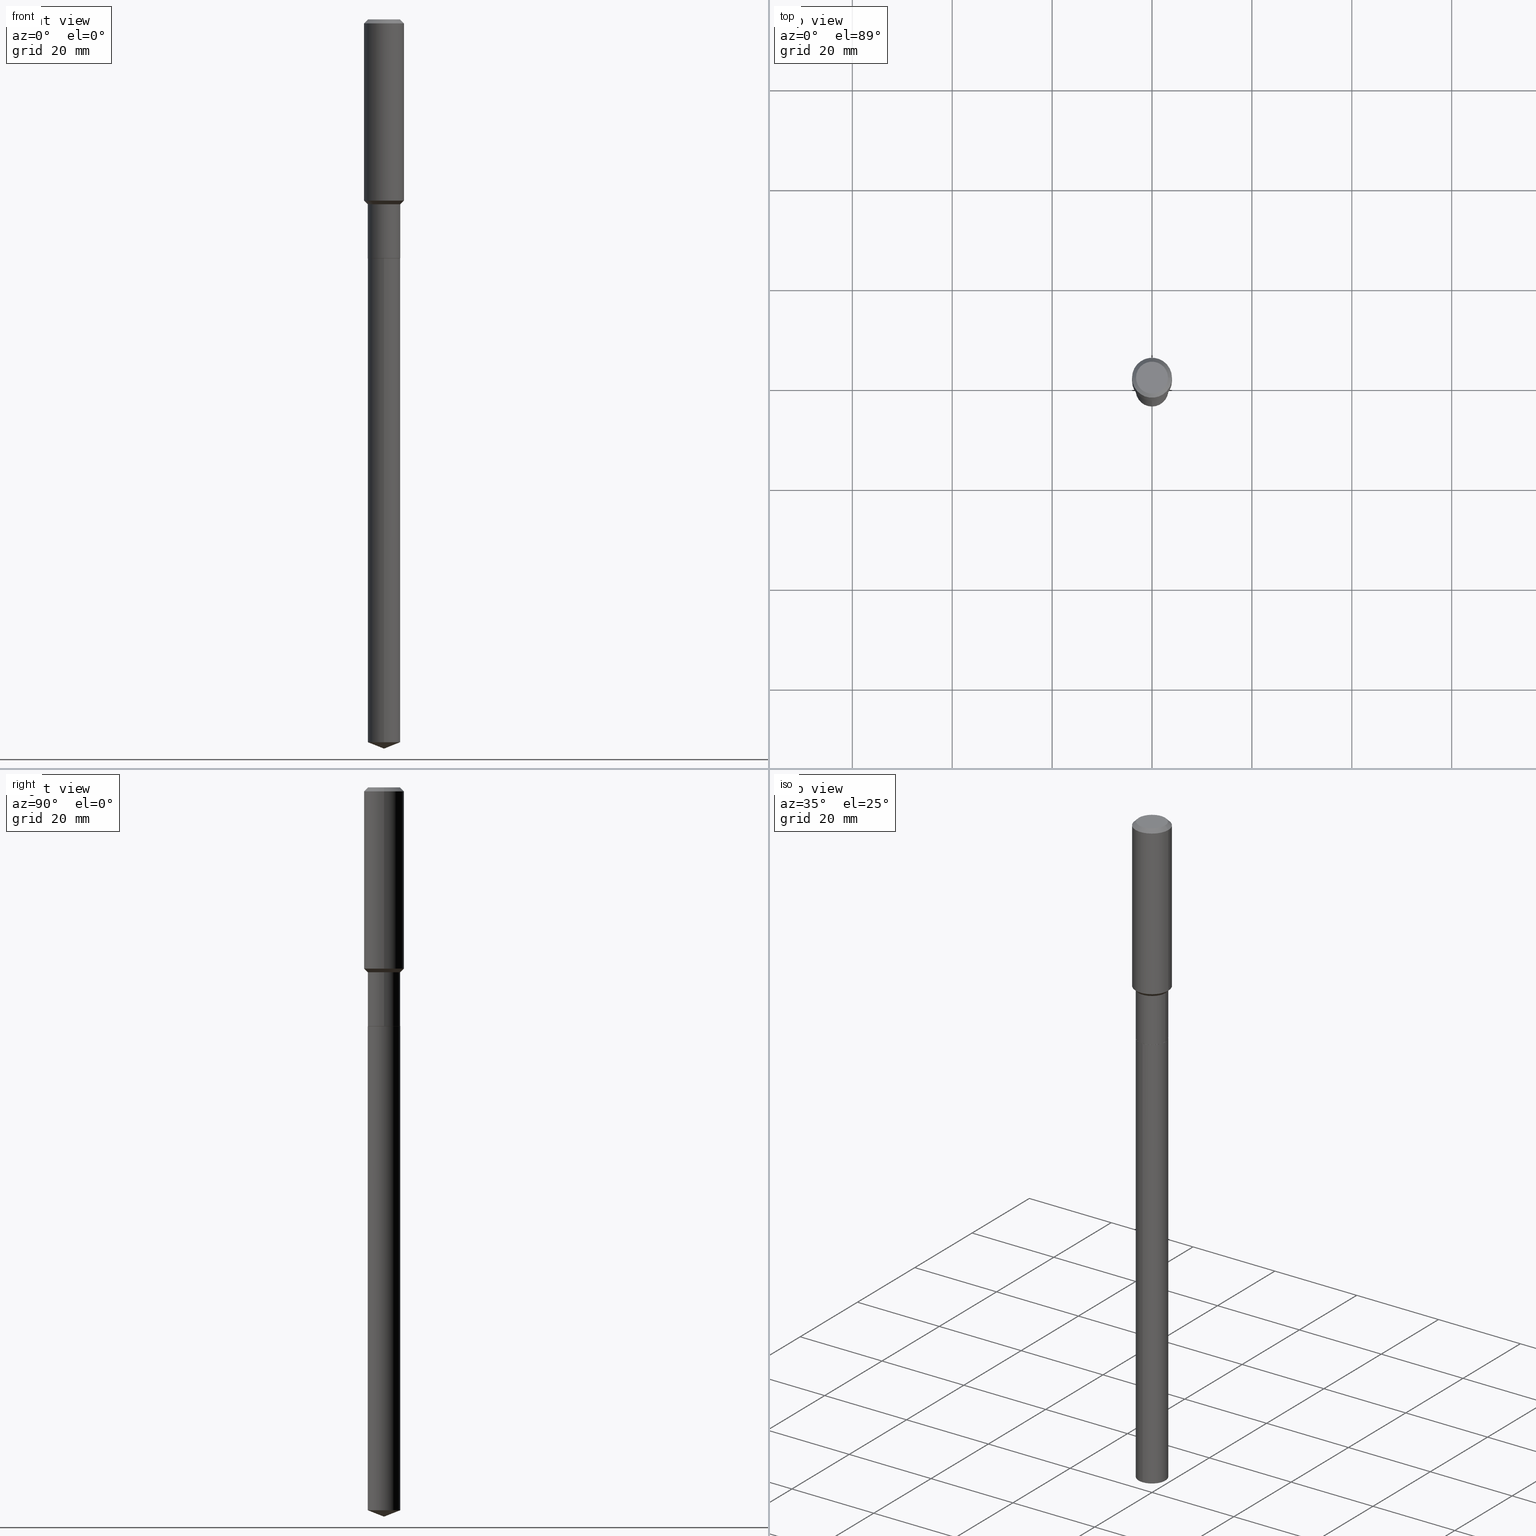
[diagram: canonical four-view strip — front | top / right | iso, engineering-drawing reading convention]
A machine part, canonical four-view strip (front | top / right | iso — engineering-drawing reading convention). The complete STEP part file that produces these views, byte-faithful:
ISO-10303-21;
HEADER;
FILE_DESCRIPTION (( 'STEP AP203' ),
    '1' );
FILE_NAME ('56519.STEP',
    '2024-04-24T18:17:48',
    ( '' ),
    ( '' ),
    'SwSTEP 2.0',
    'SolidWorks 2023',
    '' );
FILE_SCHEMA (( 'CONFIG_CONTROL_DESIGN' ));
ENDSEC;

DATA;
#1 = LINE ( 'NONE', #333, #31 ) ;
#2 = ORIENTED_EDGE ( 'NONE', *, *, #277, .F. ) ;
#3 = MANIFOLD_SOLID_BREP ( 'Body-Move/Copy2[1]', #227 ) ;
#4 = DATE_AND_TIME ( #183, #229 ) ;
#5 = CC_DESIGN_PERSON_AND_ORGANIZATION_ASSIGNMENT ( #138, #133, ( #59 ) ) ;
#6 = ORIENTED_EDGE ( 'NONE', *, *, #370, .T. ) ;
#7 = AXIS2_PLACEMENT_3D ( 'NONE', #187, #289, #214 ) ;
#8 = CIRCLE ( 'NONE', #63, 0.1285000000000000031 ) ;
#9 = DIRECTION ( 'NONE',  ( 0.7071067811865451302, -7.319954787623248157E-15, -0.7071067811865499042 ) ) ;
#10 = EDGE_CURVE ( 'NONE', #302, #418, #253, .T. ) ;
#11 = VERTEX_POINT ( 'NONE', #265 ) ;
#12 = FACE_OUTER_BOUND ( 'NONE', #428, .T. ) ;
#13 = ORIENTED_EDGE ( 'NONE', *, *, #318, .T. ) ;
#14 = DIRECTION ( 'NONE',  ( -6.497071151882121414E-15, -0.9304175679820249067, 0.3665012267242964694 ) ) ;
#15 = DIRECTION ( 'NONE',  ( 1.000000000000000000, -6.982962677686265922E-15, 0.000000000000000000 ) ) ;
#16 = AXIS2_PLACEMENT_3D ( 'NONE', #404, #68, #477 ) ;
#17 = CARTESIAN_POINT ( 'NONE',  ( 0.1260000000000000009, -1.027466422270894443E-15, 3.860086710919128072E-18 ) ) ;
#18 = EDGE_LOOP ( 'NONE', ( #2, #77, #260, #40 ) ) ;
#19 = DIRECTION ( 'NONE',  ( 1.000000000000000000, -6.982962677686263555E-15, 0.000000000000000000 ) ) ;
#20 = DIRECTION ( 'NONE',  ( 1.000000000000000000, -6.982962677686272233E-15, 0.000000000000000000 ) ) ;
#21 = CALENDAR_DATE ( 2024, 24, 4 ) ;
#22 = CARTESIAN_POINT ( 'NONE',  ( -8.222507994478509309E-28, 1.173860843172942357E-13, 33.62207874015748388 ) ) ;
#23 = DATE_AND_TIME ( #431, #201 ) ;
#24 = AXIS2_PLACEMENT_3D ( 'NONE', #314, #25, #209 ) ;
#25 = DIRECTION ( 'NONE',  ( -2.445562745369690193E-29, 3.491346812584178564E-15, 1.000000000000000000 ) ) ;
#26 = PERSON_AND_ORGANIZATION ( #103, #337 ) ;
#27 = FACE_OUTER_BOUND ( 'NONE', #150, .T. ) ;
#28 = APPLICATION_CONTEXT ( 'configuration controlled 3d designs of mechanical parts and assemblies' ) ;
#29 = COORDINATED_UNIVERSAL_TIME_OFFSET ( 5, 0, .BEHIND. ) ;
#30 = DIRECTION ( 'NONE',  ( -2.445468806185136597E-29, 3.491481338843145583E-15, 1.000000000000000000 ) ) ;
#31 = VECTOR ( 'NONE', #148, 39.37007874015748143 ) ;
#32 = CARTESIAN_POINT ( 'NONE',  ( 3.564026238134217043E-29, -5.088484903229998973E-15, -1.457399999999999585 ) ) ;
#33 = ORIENTED_EDGE ( 'NONE', *, *, #147, .T. ) ;
#34 = EDGE_CURVE ( 'NONE', #188, #199, #121, .T. ) ;
#35 = ORIENTED_EDGE ( 'NONE', *, *, #323, .F. ) ;
#36 = DIRECTION ( 'NONE',  ( 2.445562745369689913E-29, -3.491346812584178564E-15, -1.000000000000000000 ) ) ;
#37 = AXIS2_PLACEMENT_3D ( 'NONE', #351, #30, #481 ) ;
#38 = CONICAL_SURFACE ( 'NONE', #299, 0.1280000000000000027, 0.7853981633975507526 ) ;
#39 = EDGE_LOOP ( 'NONE', ( #235, #332, #75 ) ) ;
#40 = ORIENTED_EDGE ( 'NONE', *, *, #219, .F. ) ;
#41 = DIRECTION ( 'NONE',  ( 1.000000000000000000, -6.982962677686269077E-15, 0.000000000000000000 ) ) ;
#42 = ORIENTED_EDGE ( 'NONE', *, *, #34, .F. ) ;
#43 = DIRECTION ( 'NONE',  ( -2.445468806185136597E-29, 3.491481338843145583E-15, 1.000000000000000000 ) ) ;
#44 = CLOSED_SHELL ( 'NONE', ( #446, #408, #367, #405, #90, #76, #47, #257, #119, #94, #373, #353 ) ) ;
#45 = DIRECTION ( 'NONE',  ( 1.000000000000000000, -6.982962677686267499E-15, 4.876176775795935793E-29 ) ) ;
#46 = VECTOR ( 'NONE', #117, 39.37007874015748143 ) ;
#47 = ADVANCED_FACE ( 'NONE', ( #125 ), #423, .T. ) ;
#48 = CARTESIAN_POINT ( 'NONE',  ( 0.1285000000000000031, -7.465136250580526228E-15, -1.881099999999999994 ) ) ;
#49 = VERTEX_POINT ( 'NONE', #196 ) ;
#50 = FACE_OUTER_BOUND ( 'NONE', #371, .T. ) ;
#51 = VERTEX_POINT ( 'NONE', #434 ) ;
#52 = CYLINDRICAL_SURFACE ( 'NONE', #270, 0.1575000000000000844 ) ;
#53 = ORIENTED_EDGE ( 'NONE', *, *, #277, .T. ) ;
#54 = AXIS2_PLACEMENT_3D ( 'NONE', #389, #462, #464 ) ;
#55 = CONICAL_SURFACE ( 'NONE', #388, 0.1575000000000000011, 0.7853981633974449483 ) ;
#56 = DIRECTION ( 'NONE',  ( 1.000000000000000000, -6.982962677686265922E-15, 4.876176775795935793E-29 ) ) ;
#57 = DIRECTION ( 'NONE',  ( -0.7071067811866199593, 7.493145998870616062E-15, 0.7071067811864750752 ) ) ;
#58 = MECHANICAL_CONTEXT ( 'NONE', #126, 'mechanical' ) ;
#59 = PRODUCT_DEFINITION ( 'UNKNOWN', '', #331, #420 ) ;
#60 = LINE ( 'NONE', #355, #264 ) ;
#61 = DATE_AND_TIME ( #21, #407 ) ;
#62 = CIRCLE ( 'NONE', #149, 0.1285000000000000031 ) ;
#63 = AXIS2_PLACEMENT_3D ( 'NONE', #266, #336, #166 ) ;
#64 = DIRECTION ( 'NONE',  ( -6.982962677686265922E-15, -1.000000000000000000, 3.498627837349997517E-15 ) ) ;
#65 = APPROVAL_ROLE ( '' ) ;
#66 = FACE_OUTER_BOUND ( 'NONE', #73, .T. ) ;
#67 = COORDINATED_UNIVERSAL_TIME_OFFSET ( 5, 0, .BEHIND. ) ;
#68 = DIRECTION ( 'NONE',  ( -2.445468806185136597E-29, 3.491481338843145583E-15, 1.000000000000000000 ) ) ;
#69 = CIRCLE ( 'NONE', #7, 0.1575000000000000011 ) ;
#70 = CC_DESIGN_DATE_AND_TIME_ASSIGNMENT ( #403, #306, ( #59 ) ) ;
#71 = ORIENTED_EDGE ( 'NONE', *, *, #449, .T. ) ;
#72 = PLANE ( 'NONE',  #406 ) ;
#73 = EDGE_LOOP ( 'NONE', ( #158, #190, #291, #118 ) ) ;
#74 = AXIS2_PLACEMENT_3D ( 'NONE', #395, #478, #275 ) ;
#75 = ORIENTED_EDGE ( 'NONE', *, *, #318, .F. ) ;
#76 = ADVANCED_FACE ( 'NONE', ( #473 ), #84, .T. ) ;
#77 = ORIENTED_EDGE ( 'NONE', *, *, #10, .T. ) ;
#78 = DIRECTION ( 'NONE',  ( -6.982962677686265922E-15, -1.000000000000000000, 4.251903492084456561E-15 ) ) ;
#79 = VERTEX_POINT ( 'NONE', #380 ) ;
#80 = LINE ( 'NONE', #467, #399 ) ;
#81 = ORIENTED_EDGE ( 'NONE', *, *, #324, .F. ) ;
#82 = AXIS2_PLACEMENT_3D ( 'NONE', #22, #316, #64 ) ;
#83 = CARTESIAN_POINT ( 'NONE',  ( -8.973107040826392265E-16, -0.1285000000000065812, -1.881599999999999495 ) ) ;
#84 = CYLINDRICAL_SURFACE ( 'NONE', #397, 0.1284999999999999754 ) ;
#85 = CARTESIAN_POINT ( 'NONE',  ( 4.601394105717952960E-29, -6.569571287167262554E-15, -1.881599999999999939 ) ) ;
#86 = EDGE_CURVE ( 'NONE', #384, #194, #329, .T. ) ;
#87 = CYLINDRICAL_SURFACE ( 'NONE', #37, 0.1284999999999999754 ) ;
#88 = FACE_OUTER_BOUND ( 'NONE', #422, .T. ) ;
#89 = ORIENTED_EDGE ( 'NONE', *, *, #365, .T. ) ;
#90 = ADVANCED_FACE ( 'NONE', ( #193 ), #87, .T. ) ;
#91 =( GEOMETRIC_REPRESENTATION_CONTEXT ( 3 ) GLOBAL_UNCERTAINTY_ASSIGNED_CONTEXT ( ( #374 ) ) GLOBAL_UNIT_ASSIGNED_CONTEXT ( ( #92, #205, #170 ) ) REPRESENTATION_CONTEXT ( 'NONE', 'WORKASPACE' ) );
#92 =( CONVERSION_BASED_UNIT ( 'INCH', #210 ) LENGTH_UNIT ( ) NAMED_UNIT ( #171 ) );
#93 = VERTEX_POINT ( 'NONE', #174 ) ;
#94 = ADVANCED_FACE ( 'NONE', ( #27 ), #135, .F. ) ;
#95 = PERSON_AND_ORGANIZATION_ROLE ( 'design_supplier' ) ;
#96 = CYLINDRICAL_SURFACE ( 'NONE', #475, 0.1285000000000000031 ) ;
#97 = EDGE_CURVE ( 'NONE', #49, #188, #379, .T. ) ;
#98 = DIRECTION ( 'NONE',  ( 2.438088387897960049E-29, -3.491481338843145188E-15, -1.000000000000000000 ) ) ;
#99 = APPROVAL_STATUS ( 'not_yet_approved' ) ;
#100 = CIRCLE ( 'NONE', #310, 0.1285000000000000031 ) ;
#101 = DIRECTION ( 'NONE',  ( 1.000000000000000000, -6.982962677686263555E-15, 0.000000000000000000 ) ) ;
#102 = PRODUCT_DEFINITION_SHAPE ( 'NONE', 'NONE',  #59 ) ;
#103 = PERSON ( 'UNSPECIFIED', 'UNSPECIFIED', 'UNSPECIFIED', ('UNSPECIFIED'), ('UNSPECIFIED'), ('UNSPECIFIED') ) ;
#104 = DIRECTION ( 'NONE',  ( -2.445468806185136877E-29, 3.491481338843145188E-15, 1.000000000000000000 ) ) ;
#105 = AXIS2_PLACEMENT_3D ( 'NONE', #267, #349, #20 ) ;
#106 = LINE ( 'NONE', #486, #457 ) ;
#107 = AXIS2_PLACEMENT_3D ( 'NONE', #113, #416, #41 ) ;
#108 = AXIS2_PLACEMENT_3D ( 'NONE', #85, #234, #78 ) ;
#109 = EDGE_LOOP ( 'NONE', ( #146, #325, #338, #35 ) ) ;
#110 = ORIENTED_EDGE ( 'NONE', *, *, #390, .T. ) ;
#111 = ADVANCED_FACE ( 'NONE', ( #309 ), #320, .T. ) ;
#112 = ORIENTED_EDGE ( 'NONE', *, *, #295, .T. ) ;
#113 = CARTESIAN_POINT ( 'NONE',  ( 4.600171371314860158E-29, -6.567825546497841051E-15, -1.881099999999999994 ) ) ;
#114 = ADVANCED_FACE ( 'NONE', ( #139 ), #345, .T. ) ;
#115 = ORIENTED_EDGE ( 'NONE', *, *, #259, .F. ) ;
#116 = ORIENTED_EDGE ( 'NONE', *, *, #215, .T. ) ;
#117 = DIRECTION ( 'NONE',  ( -2.445468806185136877E-29, 3.491481338843145188E-15, 1.000000000000000000 ) ) ;
#118 = ORIENTED_EDGE ( 'NONE', *, *, #469, .F. ) ;
#119 = ADVANCED_FACE ( 'NONE', ( #177 ), #55, .T. ) ;
#120 = CARTESIAN_POINT ( 'NONE',  ( 1.405674114844566719E-28, -2.006876772795160524E-14, -5.748000000000000220 ) ) ;
#121 = LINE ( 'NONE', #468, #387 ) ;
#122 = CIRCLE ( 'NONE', #254, 0.1280000000000000027 ) ;
#123 = LOCAL_TIME ( 14, 17, 48.00000000000000000, #29 ) ;
#124 = DIRECTION ( 'NONE',  ( -2.445468806185136597E-29, 3.491481338843145583E-15, 1.000000000000000000 ) ) ;
#125 = FACE_OUTER_BOUND ( 'NONE', #18, .T. ) ;
#126 = APPLICATION_CONTEXT ( 'configuration controlled 3d designs of mechanical parts and assemblies' ) ;
#127 = DIRECTION ( 'NONE',  ( -2.445468806185136597E-29, 3.491481338843145583E-15, 1.000000000000000000 ) ) ;
#128 = ORIENTED_EDGE ( 'NONE', *, *, #295, .F. ) ;
#129 = COORDINATED_UNIVERSAL_TIME_OFFSET ( 5, 0, .BEHIND. ) ;
#130 = CARTESIAN_POINT ( 'NONE',  ( 0.000000000000000000, 0.000000000000000000, 0.000000000000000000 ) ) ;
#131 = AXIS2_PLACEMENT_3D ( 'NONE', #448, #216, #488 ) ;
#132 = AXIS2_PLACEMENT_3D ( 'NONE', #241, #244, #392 ) ;
#133 = PERSON_AND_ORGANIZATION_ROLE ( 'creator' ) ;
#134 = ADVANCED_FACE ( 'NONE', ( #360 ), #141, .T. ) ;
#135 = PLANE ( 'NONE',  #465 ) ;
#136 = APPROVAL_STATUS ( 'not_yet_approved' ) ;
#137 = CARTESIAN_POINT ( 'NONE',  ( 7.703226739483228723E-31, -1.099816621735597661E-16, -0.03150000000000019451 ) ) ;
#138 = PERSON_AND_ORGANIZATION ( #103, #337 ) ;
#139 = FACE_OUTER_BOUND ( 'NONE', #39, .T. ) ;
#140 = AXIS2_PLACEMENT_3D ( 'NONE', #206, #479, #362 ) ;
#141 = CONICAL_SURFACE ( 'NONE', #82, 99.94676754584016010, 1.195550537616120179 ) ;
#142 = VECTOR ( 'NONE', #258, 39.37007874015748143 ) ;
#143 = DIRECTION ( 'NONE',  ( -6.982962677686265922E-15, -1.000000000000000000, 0.000000000000000000 ) ) ;
#144 = CARTESIAN_POINT ( 'NONE',  ( 1.405709776026740013E-28, -2.006826147873385671E-14, -5.748000000000000220 ) ) ;
#145 = EDGE_CURVE ( 'NONE', #490, #418, #436, .T. ) ;
#146 = ORIENTED_EDGE ( 'NONE', *, *, #365, .F. ) ;
#147 = EDGE_CURVE ( 'NONE', #418, #302, #317, .T. ) ;
#148 = DIRECTION ( 'NONE',  ( -0.7071067811865451302, 2.468850131082231817E-15, -0.7071067811865499042 ) ) ;
#149 = AXIS2_PLACEMENT_3D ( 'NONE', #458, #218, #184 ) ;
#150 = EDGE_LOOP ( 'NONE', ( #382, #116 ) ) ;
#151 = ORIENTED_EDGE ( 'NONE', *, *, #463, .F. ) ;
#152 = ORIENTED_EDGE ( 'NONE', *, *, #391, .F. ) ;
#153 = CIRCLE ( 'NONE', #330, 0.1260000000000000009 ) ;
#154 = CC_DESIGN_SECURITY_CLASSIFICATION ( #356, ( #331 ) ) ;
#155 = PLANE ( 'NONE',  #243 ) ;
#156 = ORIENTED_EDGE ( 'NONE', *, *, #251, .F. ) ;
#157 = DIRECTION ( 'NONE',  ( 1.000000000000000000, -6.982962677686267499E-15, 4.876176775795936353E-29 ) ) ;
#158 = ORIENTED_EDGE ( 'NONE', *, *, #449, .F. ) ;
#159 = CARTESIAN_POINT ( 'NONE',  ( 4.601394105717952960E-29, -6.569571287167262554E-15, -1.881599999999999939 ) ) ;
#160 = AXIS2_PLACEMENT_3D ( 'NONE', #340, #343, #15 ) ;
#161 = EDGE_LOOP ( 'NONE', ( #13, #71, #182, #152 ) ) ;
#162 = CIRCLE ( 'NONE', #248, 0.1260000000000000009 ) ;
#163 = CARTESIAN_POINT ( 'NONE',  ( 0.1575000000000000011, -1.209798283909146741E-15, -0.03150000000000019451 ) ) ;
#164 = CC_DESIGN_PERSON_AND_ORGANIZATION_ASSIGNMENT ( #319, #350, ( #176 ) ) ;
#165 = ORIENTED_EDGE ( 'NONE', *, *, #86, .F. ) ;
#166 = DIRECTION ( 'NONE',  ( -6.982962677686265922E-15, -1.000000000000000000, 4.251903492084456561E-15 ) ) ;
#167 = ORIENTED_EDGE ( 'NONE', *, *, #324, .T. ) ;
#168 = DIRECTION ( 'NONE',  ( -2.445562745369690193E-29, 3.491346812584178564E-15, 1.000000000000000000 ) ) ;
#169 = AXIS2_PLACEMENT_3D ( 'NONE', #301, #232, #381 ) ;
#170 =( NAMED_UNIT ( * ) SI_UNIT ( $, .STERADIAN. ) SOLID_ANGLE_UNIT ( ) );
#171 = DIMENSIONAL_EXPONENTS ( 1.000000000000000000, 0.000000000000000000, 0.000000000000000000, 0.000000000000000000, 0.000000000000000000, 0.000000000000000000, 0.000000000000000000 ) ;
#172 = CARTESIAN_POINT ( 'NONE',  ( -0.1575000000000000011, -1.429501994466394853E-15, -0.03150000000000019451 ) ) ;
#173 = CALENDAR_DATE ( 2024, 24, 4 ) ;
#174 = CARTESIAN_POINT ( 'NONE',  ( 9.130474154518677977E-16, 0.1284999999999800746, -5.697382503883480886 ) ) ;
#175 = APPROVAL_ROLE ( '' ) ;
#176 = PRODUCT ( '56519', '56519', '', ( #58 ) ) ;
#177 = FACE_OUTER_BOUND ( 'NONE', #225, .T. ) ;
#178 = AXIS2_PLACEMENT_3D ( 'NONE', #202, #261, #226 ) ;
#179 = APPLICATION_PROTOCOL_DEFINITION ( 'international standard', 'config_control_design', 1994, #126 ) ;
#180 = DIRECTION ( 'NONE',  ( 1.000000000000000000, -6.982962677686265922E-15, 4.876281427513067258E-29 ) ) ;
#181 = CARTESIAN_POINT ( 'NONE',  ( -9.439721640706201686E-47, 1.347742071746726764E-32, 3.860086710912459732E-18 ) ) ;
#182 = ORIENTED_EDGE ( 'NONE', *, *, #484, .F. ) ;
#183 = CALENDAR_DATE ( 2024, 24, 4 ) ;
#184 = DIRECTION ( 'NONE',  ( -6.982962677686265922E-15, -1.000000000000000000, 0.000000000000000000 ) ) ;
#185 = EDGE_CURVE ( 'NONE', #93, #296, #432, .T. ) ;
#186 = AXIS2_PLACEMENT_3D ( 'NONE', #32, #273, #358 ) ;
#187 = CARTESIAN_POINT ( 'NONE',  ( 7.703226739483228723E-31, -1.099816621735597661E-16, -0.03150000000000019451 ) ) ;
#188 = VERTEX_POINT ( 'NONE', #280 ) ;
#189 = CARTESIAN_POINT ( 'NONE',  ( 1.405709466038497761E-28, -2.006826147873385986E-14, -5.748000000000000220 ) ) ;
#190 = ORIENTED_EDGE ( 'NONE', *, *, #185, .T. ) ;
#191 = CARTESIAN_POINT ( 'NONE',  ( -0.1575000000000001676, -3.868127135581388640E-15, -1.428399999999999448 ) ) ;
#192 = APPROVAL ( #99, 'UNSPECIFIED' ) ;
#193 = FACE_OUTER_BOUND ( 'NONE', #230, .T. ) ;
#194 = VERTEX_POINT ( 'NONE', #172 ) ;
#195 = DIRECTION ( 'NONE',  ( -2.445468806185136597E-29, 3.491481338843145583E-15, 1.000000000000000000 ) ) ;
#196 = CARTESIAN_POINT ( 'NONE',  ( 0.1280000000000000027, -7.463390509911103936E-15, -1.881599999999999939 ) ) ;
#197 = PRODUCT_RELATED_PRODUCT_CATEGORY ( 'detail', '', ( #176 ) ) ;
#198 = FACE_OUTER_BOUND ( 'NONE', #223, .T. ) ;
#199 = VERTEX_POINT ( 'NONE', #445 ) ;
#200 = CIRCLE ( 'NONE', #207, 0.1575000000000001676 ) ;
#201 = LOCAL_TIME ( 14, 17, 48.00000000000000000, #67 ) ;
#202 = CARTESIAN_POINT ( 'NONE',  ( 7.703226739483228723E-31, -1.099816621735597661E-16, -0.03150000000000019451 ) ) ;
#203 = ORIENTED_EDGE ( 'NONE', *, *, #86, .T. ) ;
#204 = DIRECTION ( 'NONE',  ( -1.000000000000000000, 6.982962677686265922E-15, 0.000000000000000000 ) ) ;
#205 =( NAMED_UNIT ( * ) PLANE_ANGLE_UNIT ( ) SI_UNIT ( $, .RADIAN. ) );
#206 = CARTESIAN_POINT ( 'NONE',  ( -8.222507994478509309E-28, 1.173860843172942357E-13, 33.62207874015748388 ) ) ;
#207 = AXIS2_PLACEMENT_3D ( 'NONE', #378, #195, #429 ) ;
#208 = DIRECTION ( 'NONE',  ( -1.000000000000000000, 6.982962677686265922E-15, -4.876176775795935793E-29 ) ) ;
#209 = DIRECTION ( 'NONE',  ( -6.982962677686265922E-15, -1.000000000000000000, 4.251903492084456561E-15 ) ) ;
#210 = LENGTH_MEASURE_WITH_UNIT ( LENGTH_MEASURE( 0.02539999999999999897 ), #361 );
#211 = DIRECTION ( 'NONE',  ( -2.445562745369690193E-29, 3.491346812584178564E-15, 1.000000000000000000 ) ) ;
#212 = CIRCLE ( 'NONE', #16, 0.1575000000000001676 ) ;
#213 = APPROVAL_PERSON_ORGANIZATION ( #440, #192, #175 ) ;
#214 = DIRECTION ( 'NONE',  ( 1.000000000000000000, -6.982962677686265922E-15, 0.000000000000000000 ) ) ;
#215 = EDGE_CURVE ( 'NONE', #376, #51, #153, .T. ) ;
#216 = DIRECTION ( 'NONE',  ( -2.445468806185136597E-29, 3.491481338843145583E-15, 1.000000000000000000 ) ) ;
#217 = ORIENTED_EDGE ( 'NONE', *, *, #97, .T. ) ;
#218 = DIRECTION ( 'NONE',  ( -2.445562745369690193E-29, 3.491346812584178564E-15, 1.000000000000000000 ) ) ;
#219 = EDGE_CURVE ( 'NONE', #453, #414, #212, .T. ) ;
#220 = EDGE_LOOP ( 'NONE', ( #81, #346, #372, #256 ) ) ;
#221 = CARTESIAN_POINT ( 'NONE',  ( -0.1284999999999999476, -4.915107809412192040E-15, -1.457399999999999585 ) ) ;
#222 = VECTOR ( 'NONE', #9, 39.37007874015748143 ) ;
#223 = EDGE_LOOP ( 'NONE', ( #334, #89, #165, #459 ) ) ;
#224 = DIRECTION ( 'NONE',  ( -2.445468806185136597E-29, 3.491481338843145583E-15, 1.000000000000000000 ) ) ;
#225 = EDGE_LOOP ( 'NONE', ( #455, #305, #112, #430 ) ) ;
#226 = DIRECTION ( 'NONE',  ( -1.000000000000000000, 6.982962677686265922E-15, 0.000000000000000000 ) ) ;
#227 = CLOSED_SHELL ( 'NONE', ( #111, #114, #134, #228, #293 ) ) ;
#228 = ADVANCED_FACE ( 'NONE', ( #66 ), #96, .T. ) ;
#229 = LOCAL_TIME ( 14, 17, 48.00000000000000000, #315 ) ;
#230 = EDGE_LOOP ( 'NONE', ( #300, #167, #298, #287 ) ) ;
#231 = DIRECTION ( 'NONE',  ( 1.000000000000000000, -6.982962677686265922E-15, 4.876281427513067258E-29 ) ) ;
#232 = DIRECTION ( 'NONE',  ( -2.445468806185136597E-29, 3.491481338843145583E-15, 1.000000000000000000 ) ) ;
#233 = DIRECTION ( 'NONE',  ( -2.445468806185136597E-29, 3.491481338843145583E-15, 1.000000000000000000 ) ) ;
#234 = DIRECTION ( 'NONE',  ( -2.445562745369690193E-29, 3.491346812584178564E-15, 1.000000000000000000 ) ) ;
#235 = ORIENTED_EDGE ( 'NONE', *, *, #390, .F. ) ;
#236 = CARTESIAN_POINT ( 'NONE',  ( 4.601394105717952960E-29, -6.569571287167262554E-15, -1.881599999999999939 ) ) ;
#237 = ORIENTED_EDGE ( 'NONE', *, *, #34, .T. ) ;
#238 = CYLINDRICAL_SURFACE ( 'NONE', #74, 0.1575000000000000844 ) ;
#239 = APPLICATION_PROTOCOL_DEFINITION ( 'international standard', 'config_control_design', 1994, #28 ) ;
#240 = DIRECTION ( 'NONE',  ( -6.982962677686265922E-15, -1.000000000000000000, 4.251903492084456561E-15 ) ) ;
#241 = CARTESIAN_POINT ( 'NONE',  ( 0.000000000000000000, 0.000000000000000000, 0.000000000000000000 ) ) ;
#242 = CARTESIAN_POINT ( 'NONE',  ( 4.601394105717952960E-29, -6.569571287167262554E-15, -1.881599999999999939 ) ) ;
#243 = AXIS2_PLACEMENT_3D ( 'NONE', #472, #294, #56 ) ;
#244 = DIRECTION ( 'NONE',  ( 0.000000000000000000, 0.000000000000000000, 1.000000000000000000 ) ) ;
#245 = CALENDAR_DATE ( 2024, 24, 4 ) ;
#246 = DIRECTION ( 'NONE',  ( -2.445468806185136597E-29, 3.491481338843145583E-15, 1.000000000000000000 ) ) ;
#247 = LINE ( 'NONE', #255, #456 ) ;
#248 = AXIS2_PLACEMENT_3D ( 'NONE', #181, #285, #231 ) ;
#249 = LINE ( 'NONE', #366, #442 ) ;
#250 = EDGE_LOOP ( 'NONE', ( #217, #237, #454, #271 ) ) ;
#251 = EDGE_CURVE ( 'NONE', #283, #93, #312, .T. ) ;
#252 = ORIENTED_EDGE ( 'NONE', *, *, #417, .F. ) ;
#253 = CIRCLE ( 'NONE', #54, 0.1284999999999999476 ) ;
#254 = AXIS2_PLACEMENT_3D ( 'NONE', #236, #43, #470 ) ;
#255 = CARTESIAN_POINT ( 'NONE',  ( -0.1284999999999999476, -4.175437487778270606E-15, -1.457399999999999585 ) ) ;
#256 = ORIENTED_EDGE ( 'NONE', *, *, #10, .F. ) ;
#257 = ADVANCED_FACE ( 'NONE', ( #447 ), #238, .T. ) ;
#258 = DIRECTION ( 'NONE',  ( 0.7071067811866199593, -2.468850131083015945E-15, 0.7071067811864750752 ) ) ;
#259 = EDGE_CURVE ( 'NONE', #418, #414, #60, .T. ) ;
#260 = ORIENTED_EDGE ( 'NONE', *, *, #259, .T. ) ;
#261 = DIRECTION ( 'NONE',  ( 2.445468806185136597E-29, -3.491481338843145583E-15, -1.000000000000000000 ) ) ;
#262 = ORIENTED_EDGE ( 'NONE', *, *, #410, .F. ) ;
#263 = CARTESIAN_POINT ( 'NONE',  ( 0.1575000000000000844, -1.099816621735587677E-15, 7.679978421878603638E-30 ) ) ;
#264 = VECTOR ( 'NONE', #409, 39.37007874015748143 ) ;
#265 = CARTESIAN_POINT ( 'NONE',  ( -8.973107040826392265E-16, -0.1285000000000065812, -1.881599999999999495 ) ) ;
#266 = CARTESIAN_POINT ( 'NONE',  ( 4.601394105717952960E-29, -6.569571287167262554E-15, -1.881599999999999939 ) ) ;
#267 = CARTESIAN_POINT ( 'NONE',  ( 3.564026238134217043E-29, -5.088484903229998973E-15, -1.457399999999999585 ) ) ;
#268 = LINE ( 'NONE', #120, #308 ) ;
#269 = ORIENTED_EDGE ( 'NONE', *, *, #483, .T. ) ;
#270 = AXIS2_PLACEMENT_3D ( 'NONE', #383, #224, #157 ) ;
#271 = ORIENTED_EDGE ( 'NONE', *, *, #483, .F. ) ;
#272 = PERSON_AND_ORGANIZATION ( #103, #337 ) ;
#273 = DIRECTION ( 'NONE',  ( -2.445468806185136597E-29, 3.491481338843145583E-15, 1.000000000000000000 ) ) ;
#274 = PERSON_AND_ORGANIZATION ( #103, #337 ) ;
#275 = DIRECTION ( 'NONE',  ( 1.000000000000000000, -6.982962677686267499E-15, 4.876176775795936353E-29 ) ) ;
#276 = DATE_TIME_ROLE ( 'classification_date' ) ;
#277 = EDGE_CURVE ( 'NONE', #302, #453, #247, .T. ) ;
#278 = CARTESIAN_POINT ( 'NONE',  ( 0.1284999999999999754, -8.973107040826851776E-16, 6.265887156897776261E-30 ) ) ;
#279 = VECTOR ( 'NONE', #347, 39.37007874015748143 ) ;
#280 = CARTESIAN_POINT ( 'NONE',  ( -0.1280000000000000027, -5.657427358220223885E-15, -1.881599999999999939 ) ) ;
#281 = DIRECTION ( 'NONE',  ( 6.611014441532069744E-15, 0.9304175679820273492, 0.3665012267242899191 ) ) ;
#282 = CARTESIAN_POINT ( 'NONE',  ( -8.973107040825455493E-16, -0.1285000000000198483, -5.697382503883480886 ) ) ;
#283 = VERTEX_POINT ( 'NONE', #189 ) ;
#284 = CC_DESIGN_PERSON_AND_ORGANIZATION_ASSIGNMENT ( #435, #95, ( #331 ) ) ;
#285 = DIRECTION ( 'NONE',  ( -2.445468806185136597E-29, 3.491481338843145583E-15, 1.000000000000000000 ) ) ;
#286 = DIRECTION ( 'NONE',  ( -2.445468806185136877E-29, 3.491481338843145188E-15, 1.000000000000000000 ) ) ;
#287 = ORIENTED_EDGE ( 'NONE', *, *, #145, .F. ) ;
#288 = EDGE_LOOP ( 'NONE', ( #42, #369, #269, #151 ) ) ;
#289 = DIRECTION ( 'NONE',  ( -2.445468806185136597E-29, 3.491481338843145583E-15, 1.000000000000000000 ) ) ;
#290 = EDGE_CURVE ( 'NONE', #51, #376, #162, .T. ) ;
#291 = ORIENTED_EDGE ( 'NONE', *, *, #391, .T. ) ;
#292 = CIRCLE ( 'NONE', #107, 0.1285000000000000031 ) ;
#293 = ADVANCED_FACE ( 'NONE', ( #480 ), #72, .F. ) ;
#294 = DIRECTION ( 'NONE',  ( -2.438088387897960049E-29, 3.491481338843145188E-15, 1.000000000000000000 ) ) ;
#295 = EDGE_CURVE ( 'NONE', #51, #194, #1, .T. ) ;
#296 = VERTEX_POINT ( 'NONE', #282 ) ;
#297 = LINE ( 'NONE', #263, #46 ) ;
#298 = ORIENTED_EDGE ( 'NONE', *, *, #147, .F. ) ;
#299 = AXIS2_PLACEMENT_3D ( 'NONE', #159, #127, #19 ) ;
#300 = ORIENTED_EDGE ( 'NONE', *, *, #348, .T. ) ;
#301 = CARTESIAN_POINT ( 'NONE',  ( 3.564026238134217043E-29, -5.088484903229998973E-15, -1.457399999999999585 ) ) ;
#302 = VERTEX_POINT ( 'NONE', #221 ) ;
#303 = CARTESIAN_POINT ( 'NONE',  ( 0.1280000000000000027, -7.463390509911103936E-15, -1.881599999999999939 ) ) ;
#304 = APPROVAL ( #396, 'UNSPECIFIED' ) ;
#305 = ORIENTED_EDGE ( 'NONE', *, *, #290, .F. ) ;
#306 = DATE_TIME_ROLE ( 'creation_date' ) ;
#307 = ADVANCED_BREP_SHAPE_REPRESENTATION ( '56519', ( #3, #321, #132 ), #91 ) ;
#308 = VECTOR ( 'NONE', #14, 39.37007874015748143 ) ;
#309 = FACE_OUTER_BOUND ( 'NONE', #161, .T. ) ;
#310 = AXIS2_PLACEMENT_3D ( 'NONE', #419, #124, #461 ) ;
#311 = APPROVAL_ROLE ( '' ) ;
#312 = LINE ( 'NONE', #144, #424 ) ;
#313 = DATE_AND_TIME ( #173, #123 ) ;
#314 = CARTESIAN_POINT ( 'NONE',  ( 4.601394105717952960E-29, -6.569571287167262554E-15, -1.881599999999999939 ) ) ;
#315 = COORDINATED_UNIVERSAL_TIME_OFFSET ( 5, 0, .BEHIND. ) ;
#316 = DIRECTION ( 'NONE',  ( -2.445562745369690193E-29, 3.491346812584178564E-15, 1.000000000000000000 ) ) ;
#317 = CIRCLE ( 'NONE', #186, 0.1284999999999999476 ) ;
#318 = EDGE_CURVE ( 'NONE', #296, #93, #62, .T. ) ;
#319 = PERSON_AND_ORGANIZATION ( #103, #337 ) ;
#320 = CYLINDRICAL_SURFACE ( 'NONE', #24, 0.1285000000000000031 ) ;
#321 = MANIFOLD_SOLID_BREP ( 'Body-Move/Copy2[2]', #44 ) ;
#322 = FACE_OUTER_BOUND ( 'NONE', #288, .T. ) ;
#323 = EDGE_CURVE ( 'NONE', #194, #384, #69, .T. ) ;
#324 = EDGE_CURVE ( 'NONE', #199, #302, #106, .T. ) ;
#325 = ORIENTED_EDGE ( 'NONE', *, *, #219, .T. ) ;
#326 = APPROVAL_DATE_TIME ( #4, #192 ) ;
#327 = DIRECTION ( 'NONE',  ( -0.7071067811865481278, 7.493145998870357316E-15, 0.7071067811865469066 ) ) ;
#328 = EDGE_LOOP ( 'NONE', ( #426, #451 ) ) ;
#329 = CIRCLE ( 'NONE', #160, 0.1575000000000000011 ) ;
#330 = AXIS2_PLACEMENT_3D ( 'NONE', #402, #246, #180 ) ;
#331 = PRODUCT_DEFINITION_FORMATION_WITH_SPECIFIED_SOURCE ( 'ANY', '', #176, .NOT_KNOWN. ) ;
#332 = ORIENTED_EDGE ( 'NONE', *, *, #251, .T. ) ;
#333 = CARTESIAN_POINT ( 'NONE',  ( -0.1575000000000000011, 9.898349595620272334E-16, -0.03150000000000019451 ) ) ;
#334 = ORIENTED_EDGE ( 'NONE', *, *, #410, .T. ) ;
#335 = DIRECTION ( 'NONE',  ( 6.982962677686265922E-15, 1.000000000000000000, -3.491346812584178564E-15 ) ) ;
#336 = DIRECTION ( 'NONE',  ( -2.445562745369690193E-29, 3.491346812584178564E-15, 1.000000000000000000 ) ) ;
#337 = ORGANIZATION ( 'UNSPECIFIED', 'UNSPECIFIED', '' ) ;
#338 = ORIENTED_EDGE ( 'NONE', *, *, #385, .T. ) ;
#339 = CARTESIAN_POINT ( 'NONE',  ( 0.1575000000000000011, -1.190510096822576026E-15, -0.03150000000000019451 ) ) ;
#340 = CARTESIAN_POINT ( 'NONE',  ( 7.703226739483228723E-31, -1.099816621735597661E-16, -0.03150000000000019451 ) ) ;
#341 = CC_DESIGN_PERSON_AND_ORGANIZATION_ASSIGNMENT ( #272, #474, ( #331 ) ) ;
#342 = CARTESIAN_POINT ( 'NONE',  ( 0.1284999999999999476, -5.985795607312684151E-15, -1.457399999999999585 ) ) ;
#343 = DIRECTION ( 'NONE',  ( -2.445468806185136597E-29, 3.491481338843145583E-15, 1.000000000000000000 ) ) ;
#344 = LINE ( 'NONE', #339, #222 ) ;
#345 = CONICAL_SURFACE ( 'NONE', #140, 99.94676754584016010, 1.195550537616120179 ) ;
#346 = ORIENTED_EDGE ( 'NONE', *, *, #463, .T. ) ;
#347 = DIRECTION ( 'NONE',  ( -2.445562745369690193E-29, 3.491346812584178564E-15, 1.000000000000000000 ) ) ;
#348 = EDGE_CURVE ( 'NONE', #490, #199, #292, .T. ) ;
#349 = DIRECTION ( 'NONE',  ( -2.445468806185136597E-29, 3.491481338843145583E-15, 1.000000000000000000 ) ) ;
#350 = PERSON_AND_ORGANIZATION_ROLE ( 'design_owner' ) ;
#351 = CARTESIAN_POINT ( 'NONE',  ( 0.000000000000000000, 0.000000000000000000, 0.000000000000000000 ) ) ;
#352 = PERSON_AND_ORGANIZATION ( #103, #337 ) ;
#353 = ADVANCED_FACE ( 'NONE', ( #322 ), #466, .T. ) ;
#354 = VECTOR ( 'NONE', #104, 39.37007874015748143 ) ;
#355 = CARTESIAN_POINT ( 'NONE',  ( 0.1284999999999999476, -5.985795607312684151E-15, -1.457399999999999585 ) ) ;
#356 = SECURITY_CLASSIFICATION ( '', '', #357 ) ;
#357 = SECURITY_CLASSIFICATION_LEVEL ( 'unclassified' ) ;
#358 = DIRECTION ( 'NONE',  ( 1.000000000000000000, -6.982962677686272233E-15, 0.000000000000000000 ) ) ;
#359 = PERSON_AND_ORGANIZATION_ROLE ( 'classification_officer' ) ;
#360 = FACE_OUTER_BOUND ( 'NONE', #411, .T. ) ;
#361 =( LENGTH_UNIT ( ) NAMED_UNIT ( * ) SI_UNIT ( $, .METRE. ) );
#362 = DIRECTION ( 'NONE',  ( -6.982962677686265922E-15, -1.000000000000000000, 3.498627837349997517E-15 ) ) ;
#363 = CC_DESIGN_APPROVAL ( #438, ( #59 ) ) ;
#364 = DIRECTION ( 'NONE',  ( -2.445468806185136877E-29, 3.491481338843145188E-15, 1.000000000000000000 ) ) ;
#365 = EDGE_CURVE ( 'NONE', #453, #194, #249, .T. ) ;
#366 = CARTESIAN_POINT ( 'NONE',  ( -0.1575000000000000844, 1.119104808822158392E-15, -7.747322767151481189E-30 ) ) ;
#367 = ADVANCED_FACE ( 'NONE', ( #198 ), #52, .T. ) ;
#368 = ORIENTED_EDGE ( 'NONE', *, *, #215, .F. ) ;
#369 = ORIENTED_EDGE ( 'NONE', *, *, #417, .T. ) ;
#370 = EDGE_CURVE ( 'NONE', #376, #384, #344, .T. ) ;
#371 = EDGE_LOOP ( 'NONE', ( #33, #53, #262, #115 ) ) ;
#372 = ORIENTED_EDGE ( 'NONE', *, *, #145, .T. ) ;
#373 = ADVANCED_FACE ( 'NONE', ( #12 ), #155, .F. ) ;
#374 = UNCERTAINTY_MEASURE_WITH_UNIT (LENGTH_MEASURE( 1.000000000000000082E-05 ), #92, 'distance_accuracy_value', 'NONE');
#375 = CARTESIAN_POINT ( 'NONE',  ( 0.1575000000000001676, -6.087048566139135302E-15, -1.428399999999999448 ) ) ;
#376 = VERTEX_POINT ( 'NONE', #17 ) ;
#377 = CONICAL_SURFACE ( 'NONE', #178, 0.1575000000000000011, 0.7853981633974449483 ) ;
#378 = CARTESIAN_POINT ( 'NONE',  ( 3.493107642754847449E-29, -4.987231944403547033E-15, -1.428399999999999448 ) ) ;
#379 = CIRCLE ( 'NONE', #441, 0.1280000000000000027 ) ;
#380 = CARTESIAN_POINT ( 'NONE',  ( 9.130474154518683893E-16, 0.1284999999999934250, -1.881600000000000605 ) ) ;
#381 = DIRECTION ( 'NONE',  ( 1.000000000000000000, -6.982962677686272233E-15, 0.000000000000000000 ) ) ;
#382 = ORIENTED_EDGE ( 'NONE', *, *, #290, .T. ) ;
#383 = CARTESIAN_POINT ( 'NONE',  ( 0.000000000000000000, 0.000000000000000000, 0.000000000000000000 ) ) ;
#384 = VERTEX_POINT ( 'NONE', #163 ) ;
#385 = EDGE_CURVE ( 'NONE', #414, #384, #297, .T. ) ;
#386 = DIRECTION ( 'NONE',  ( -2.445562745369690193E-29, 3.491346812584178564E-15, 1.000000000000000000 ) ) ;
#387 = VECTOR ( 'NONE', #57, 39.37007874015748143 ) ;
#388 = AXIS2_PLACEMENT_3D ( 'NONE', #137, #393, #204 ) ;
#389 = CARTESIAN_POINT ( 'NONE',  ( 3.564026238134217043E-29, -5.088484903229998973E-15, -1.457399999999999585 ) ) ;
#390 = EDGE_CURVE ( 'NONE', #283, #296, #268, .T. ) ;
#391 = EDGE_CURVE ( 'NONE', #296, #11, #425, .T. ) ;
#392 = DIRECTION ( 'NONE',  ( 1.000000000000000000, 0.000000000000000000, 0.000000000000000000 ) ) ;
#393 = DIRECTION ( 'NONE',  ( 2.445468806185136597E-29, -3.491481338843145583E-15, -1.000000000000000000 ) ) ;
#394 = COORDINATED_UNIVERSAL_TIME_OFFSET ( 5, 0, .BEHIND. ) ;
#395 = CARTESIAN_POINT ( 'NONE',  ( 0.000000000000000000, 0.000000000000000000, 0.000000000000000000 ) ) ;
#396 = APPROVAL_STATUS ( 'not_yet_approved' ) ;
#397 = AXIS2_PLACEMENT_3D ( 'NONE', #130, #233, #45 ) ;
#398 = CC_DESIGN_PERSON_AND_ORGANIZATION_ASSIGNMENT ( #26, #359, ( #356 ) ) ;
#399 = VECTOR ( 'NONE', #386, 39.37007874015748143 ) ;
#400 = DIRECTION ( 'NONE',  ( -2.445468806185136597E-29, 3.491481338843145583E-15, 1.000000000000000000 ) ) ;
#401 = APPROVAL_DATE_TIME ( #61, #438 ) ;
#402 = CARTESIAN_POINT ( 'NONE',  ( -9.439721640706201686E-47, 1.347742071746726764E-32, 3.860086710912459732E-18 ) ) ;
#403 = DATE_AND_TIME ( #245, #415 ) ;
#404 = CARTESIAN_POINT ( 'NONE',  ( 3.493107642754847449E-29, -4.987231944403547033E-15, -1.428399999999999448 ) ) ;
#405 = ADVANCED_FACE ( 'NONE', ( #50 ), #450, .T. ) ;
#406 = AXIS2_PLACEMENT_3D ( 'NONE', #413, #36, #335 ) ;
#407 = LOCAL_TIME ( 14, 17, 48.00000000000000000, #129 ) ;
#408 = ADVANCED_FACE ( 'NONE', ( #88 ), #377, .T. ) ;
#409 = DIRECTION ( 'NONE',  ( 0.7071067811865481278, -2.468850131082263371E-15, 0.7071067811865469066 ) ) ;
#410 = EDGE_CURVE ( 'NONE', #414, #453, #200, .T. ) ;
#411 = EDGE_LOOP ( 'NONE', ( #156, #110, #487 ) ) ;
#412 = SHAPE_DEFINITION_REPRESENTATION ( #102, #307 ) ;
#413 = CARTESIAN_POINT ( 'NONE',  ( 4.601394105717952960E-29, -6.569571287167262554E-15, -1.881599999999999939 ) ) ;
#414 = VERTEX_POINT ( 'NONE', #375 ) ;
#415 = LOCAL_TIME ( 14, 17, 48.00000000000000000, #394 ) ;
#416 = DIRECTION ( 'NONE',  ( -2.445468806185136597E-29, 3.491481338843145583E-15, 1.000000000000000000 ) ) ;
#417 = EDGE_CURVE ( 'NONE', #188, #49, #122, .T. ) ;
#418 = VERTEX_POINT ( 'NONE', #342 ) ;
#419 = CARTESIAN_POINT ( 'NONE',  ( 4.600171371314860158E-29, -6.567825546497841051E-15, -1.881099999999999994 ) ) ;
#420 = DESIGN_CONTEXT ( 'detailed design', #28, 'design' ) ;
#421 = FACE_OUTER_BOUND ( 'NONE', #250, .T. ) ;
#422 = EDGE_LOOP ( 'NONE', ( #368, #6, #203, #128 ) ) ;
#423 = CONICAL_SURFACE ( 'NONE', #105, 0.1284999999999999476, 0.7853981633974491672 ) ;
#424 = VECTOR ( 'NONE', #281, 39.37007874015748143 ) ;
#425 = LINE ( 'NONE', #83, #279 ) ;
#426 = ORIENTED_EDGE ( 'NONE', *, *, #484, .T. ) ;
#427 = LINE ( 'NONE', #303, #142 ) ;
#428 = EDGE_LOOP ( 'NONE', ( #471, #252 ) ) ;
#429 = DIRECTION ( 'NONE',  ( 1.000000000000000000, -6.982962677686267499E-15, 0.000000000000000000 ) ) ;
#430 = ORIENTED_EDGE ( 'NONE', *, *, #323, .T. ) ;
#431 = CALENDAR_DATE ( 2024, 24, 4 ) ;
#432 = CIRCLE ( 'NONE', #489, 0.1285000000000000031 ) ;
#433 = APPROVAL_PERSON_ORGANIZATION ( #352, #438, #311 ) ;
#434 = CARTESIAN_POINT ( 'NONE',  ( -0.1260000000000000009, 9.348441284752484904E-16, 3.860086710906114178E-18 ) ) ;
#435 = PERSON_AND_ORGANIZATION ( #103, #337 ) ;
#436 = LINE ( 'NONE', #278, #354 ) ;
#437 = APPROVAL_DATE_TIME ( #23, #304 ) ;
#438 = APPROVAL ( #136, 'UNSPECIFIED' ) ;
#439 = CARTESIAN_POINT ( 'NONE',  ( -4.719860820353100843E-47, 6.738710358733633822E-33, 1.930043355456229866E-18 ) ) ;
#440 = PERSON_AND_ORGANIZATION ( #103, #337 ) ;
#441 = AXIS2_PLACEMENT_3D ( 'NONE', #242, #400, #101 ) ;
#442 = VECTOR ( 'NONE', #286, 39.37007874015748143 ) ;
#443 = CARTESIAN_POINT ( 'NONE',  ( 1.393312964164886599E-28, -1.989179136961532804E-14, -5.697382503883480886 ) ) ;
#444 = CIRCLE ( 'NONE', #108, 0.1285000000000000031 ) ;
#445 = CARTESIAN_POINT ( 'NONE',  ( -0.1285000000000000031, -4.915107809412192040E-15, -1.881099999999999994 ) ) ;
#446 = ADVANCED_FACE ( 'NONE', ( #421 ), #38, .T. ) ;
#447 = FACE_OUTER_BOUND ( 'NONE', #109, .T. ) ;
#448 = CARTESIAN_POINT ( 'NONE',  ( 4.601394105717952960E-29, -6.569571287167262554E-15, -1.881599999999999939 ) ) ;
#449 = EDGE_CURVE ( 'NONE', #93, #79, #80, .T. ) ;
#450 = CONICAL_SURFACE ( 'NONE', #169, 0.1284999999999999476, 0.7853981633974491672 ) ;
#451 = ORIENTED_EDGE ( 'NONE', *, *, #469, .T. ) ;
#452 = APPROVAL_PERSON_ORGANIZATION ( #274, #304, #65 ) ;
#453 = VERTEX_POINT ( 'NONE', #191 ) ;
#454 = ORIENTED_EDGE ( 'NONE', *, *, #348, .F. ) ;
#455 = ORIENTED_EDGE ( 'NONE', *, *, #370, .F. ) ;
#456 = VECTOR ( 'NONE', #327, 39.37007874015748143 ) ;
#457 = VECTOR ( 'NONE', #364, 39.37007874015748143 ) ;
#458 = CARTESIAN_POINT ( 'NONE',  ( 1.393312964164886599E-28, -1.989179136961532804E-14, -5.697382503883480886 ) ) ;
#459 = ORIENTED_EDGE ( 'NONE', *, *, #385, .F. ) ;
#460 = CC_DESIGN_DATE_AND_TIME_ASSIGNMENT ( #313, #276, ( #356 ) ) ;
#461 = DIRECTION ( 'NONE',  ( 1.000000000000000000, -6.982962677686269077E-15, 0.000000000000000000 ) ) ;
#462 = DIRECTION ( 'NONE',  ( -2.445468806185136597E-29, 3.491481338843145583E-15, 1.000000000000000000 ) ) ;
#463 = EDGE_CURVE ( 'NONE', #199, #490, #100, .T. ) ;
#464 = DIRECTION ( 'NONE',  ( 1.000000000000000000, -6.982962677686272233E-15, 0.000000000000000000 ) ) ;
#465 = AXIS2_PLACEMENT_3D ( 'NONE', #439, #98, #208 ) ;
#466 = CONICAL_SURFACE ( 'NONE', #131, 0.1280000000000000027, 0.7853981633975507526 ) ;
#467 = CARTESIAN_POINT ( 'NONE',  ( 9.130474154517747121E-16, 0.1284999999999934250, -1.881600000000000605 ) ) ;
#468 = CARTESIAN_POINT ( 'NONE',  ( -0.1280000000000000027, -5.660076585394334297E-15, -1.881599999999999939 ) ) ;
#469 = EDGE_CURVE ( 'NONE', #79, #11, #8, .T. ) ;
#470 = DIRECTION ( 'NONE',  ( 1.000000000000000000, -6.982962677686263555E-15, 0.000000000000000000 ) ) ;
#471 = ORIENTED_EDGE ( 'NONE', *, *, #97, .F. ) ;
#472 = CARTESIAN_POINT ( 'NONE',  ( 4.601394105717952960E-29, -6.569571287167262554E-15, -1.881599999999999939 ) ) ;
#473 = FACE_OUTER_BOUND ( 'NONE', #220, .T. ) ;
#474 = PERSON_AND_ORGANIZATION_ROLE ( 'creator' ) ;
#475 = AXIS2_PLACEMENT_3D ( 'NONE', #485, #211, #240 ) ;
#476 = CC_DESIGN_APPROVAL ( #304, ( #331 ) ) ;
#477 = DIRECTION ( 'NONE',  ( 1.000000000000000000, -6.982962677686267499E-15, 0.000000000000000000 ) ) ;
#478 = DIRECTION ( 'NONE',  ( -2.445468806185136597E-29, 3.491481338843145583E-15, 1.000000000000000000 ) ) ;
#479 = DIRECTION ( 'NONE',  ( -2.445562745369690193E-29, 3.491346812584178564E-15, 1.000000000000000000 ) ) ;
#480 = FACE_OUTER_BOUND ( 'NONE', #328, .T. ) ;
#481 = DIRECTION ( 'NONE',  ( 1.000000000000000000, -6.982962677686267499E-15, 4.876176775795935793E-29 ) ) ;
#482 = CC_DESIGN_APPROVAL ( #192, ( #356 ) ) ;
#483 = EDGE_CURVE ( 'NONE', #49, #490, #427, .T. ) ;
#484 = EDGE_CURVE ( 'NONE', #11, #79, #444, .T. ) ;
#485 = CARTESIAN_POINT ( 'NONE',  ( 4.601394105717952960E-29, -6.569571287167262554E-15, -1.881599999999999939 ) ) ;
#486 = CARTESIAN_POINT ( 'NONE',  ( -0.1284999999999999754, 9.130474154517285637E-16, -6.320831590977552957E-30 ) ) ;
#487 = ORIENTED_EDGE ( 'NONE', *, *, #185, .F. ) ;
#488 = DIRECTION ( 'NONE',  ( 1.000000000000000000, -6.982962677686263555E-15, 0.000000000000000000 ) ) ;
#489 = AXIS2_PLACEMENT_3D ( 'NONE', #443, #168, #143 ) ;
#490 = VERTEX_POINT ( 'NONE', #48 ) ;
ENDSEC;
END-ISO-10303-21;
